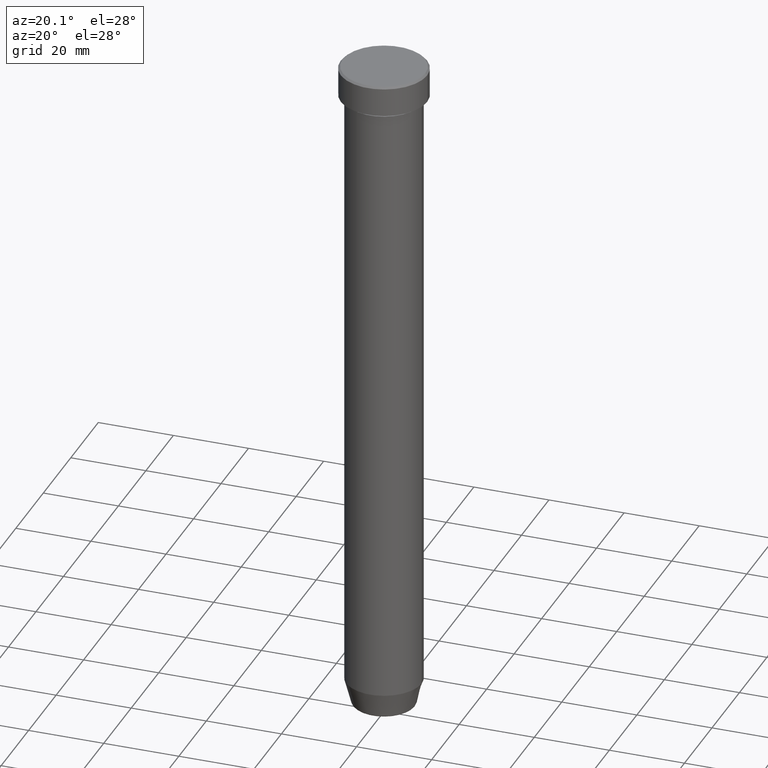
[diagram: clean part render]
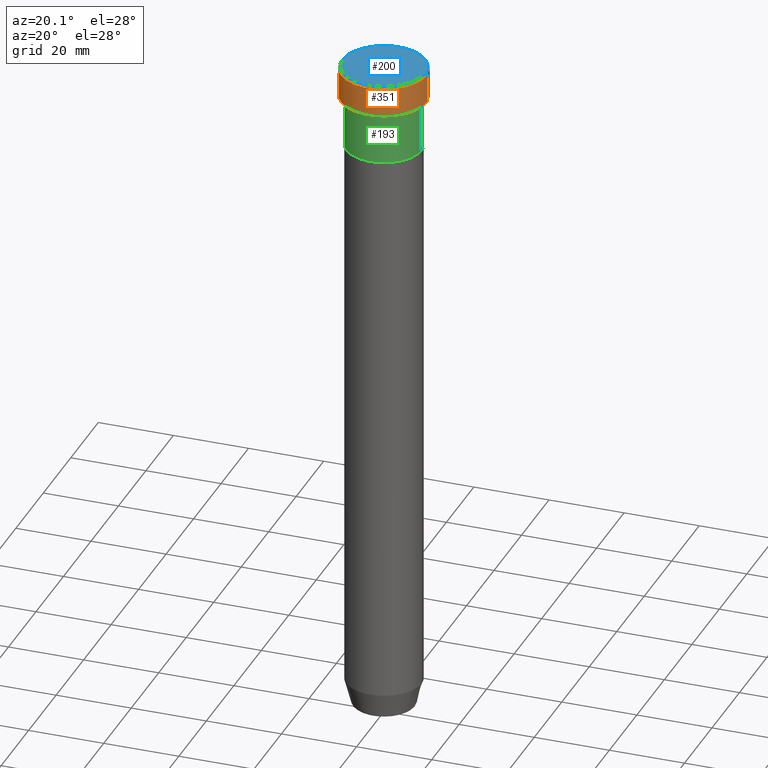
[diagram: same view with three faces highlighted in distinct colors, each labeled with its STEP entity id]
A machine part, auxiliary view with three faces highlighted in distinct colors.
Their STEP definitions:

[orange] entity #351 — the highlighted cylindrical surface (partial cylindrical patch) has radius 11.5 mm, axis along (-0, -0, 1).
#16 = LINE ( 'NONE', #58, #519 ) ;
#22 = EDGE_CURVE ( 'NONE', #314, #525, #61, .T. ) ;
#51 = EDGE_CURVE ( 'NONE', #314, #371, #535, .T. ) ;
#58 = CARTESIAN_POINT ( 'NONE',  ( 11.50000000000000000, 0.000000000000000000, 0.000000000000000000 ) ) ;
#60 = DIRECTION ( 'NONE',  ( -0.000000000000000000, -0.000000000000000000, 1.000000000000000000 ) ) ;
#61 = CIRCLE ( 'NONE', #296, 11.50000000000000000 ) ;
#65 = CYLINDRICAL_SURFACE ( 'NONE', #179, 11.50000000000000000 ) ;
#77 = ORIENTED_EDGE ( 'NONE', *, *, #22, .T. ) ;
#96 = CARTESIAN_POINT ( 'NONE',  ( -11.50000000000000000, 1.408343819019456176E-15, -0.5000000000000073275 ) ) ;
#138 = EDGE_CURVE ( 'NONE', #549, #371, #528, .T. ) ;
#158 = DIRECTION ( 'NONE',  ( -0.000000000000000000, -0.000000000000000000, 1.000000000000000000 ) ) ;
#161 = CARTESIAN_POINT ( 'NONE',  ( 11.50000000000000000, 0.000000000000000000, -0.5000000000000073275 ) ) ;
#179 = AXIS2_PLACEMENT_3D ( 'NONE', #570, #60, #289 ) ;
#183 = DIRECTION ( 'NONE',  ( 0.000000000000000000, 0.000000000000000000, -1.000000000000000000 ) ) ;
#189 = VECTOR ( 'NONE', #439, 1000.000000000000000 ) ;
#212 = CARTESIAN_POINT ( 'NONE',  ( -11.50000000000000000, 1.408343819019456176E-15, 0.000000000000000000 ) ) ;
#252 = CARTESIAN_POINT ( 'NONE',  ( 0.000000000000000000, 0.000000000000000000, -8.000000000000000000 ) ) ;
#265 = CARTESIAN_POINT ( 'NONE',  ( 11.50000000000000000, 0.000000000000000000, -8.000000000000000000 ) ) ;
#287 = ORIENTED_EDGE ( 'NONE', *, *, #138, .T. ) ;
#289 = DIRECTION ( 'NONE',  ( 1.000000000000000000, 0.000000000000000000, 0.000000000000000000 ) ) ;
#296 = AXIS2_PLACEMENT_3D ( 'NONE', #252, #479, #437 ) ;
#314 = VERTEX_POINT ( 'NONE', #510 ) ;
#318 = DIRECTION ( 'NONE',  ( 1.000000000000000000, 0.000000000000000000, 0.000000000000000000 ) ) ;
#326 = AXIS2_PLACEMENT_3D ( 'NONE', #362, #183, #318 ) ;
#331 = ORIENTED_EDGE ( 'NONE', *, *, #51, .F. ) ;
#333 = EDGE_LOOP ( 'NONE', ( #331, #77, #488, #287 ) ) ;
#351 = ADVANCED_FACE ( 'NONE', ( #432 ), #65, .T. ) ;
#358 = EDGE_CURVE ( 'NONE', #525, #549, #16, .T. ) ;
#362 = CARTESIAN_POINT ( 'NONE',  ( 0.000000000000000000, 0.000000000000000000, -0.5000000000000073275 ) ) ;
#371 = VERTEX_POINT ( 'NONE', #96 ) ;
#432 = FACE_OUTER_BOUND ( 'NONE', #333, .T. ) ;
#437 = DIRECTION ( 'NONE',  ( 1.000000000000000000, 0.000000000000000000, 0.000000000000000000 ) ) ;
#439 = DIRECTION ( 'NONE',  ( -0.000000000000000000, -0.000000000000000000, 1.000000000000000000 ) ) ;
#479 = DIRECTION ( 'NONE',  ( -0.000000000000000000, -0.000000000000000000, 1.000000000000000000 ) ) ;
#488 = ORIENTED_EDGE ( 'NONE', *, *, #358, .T. ) ;
#510 = CARTESIAN_POINT ( 'NONE',  ( -11.50000000000000000, 1.408343819019456176E-15, -8.000000000000000000 ) ) ;
#519 = VECTOR ( 'NONE', #158, 1000.000000000000000 ) ;
#525 = VERTEX_POINT ( 'NONE', #265 ) ;
#528 = CIRCLE ( 'NONE', #326, 11.50000000000000000 ) ;
#535 = LINE ( 'NONE', #212, #189 ) ;
#549 = VERTEX_POINT ( 'NONE', #161 ) ;
#570 = CARTESIAN_POINT ( 'NONE',  ( 0.000000000000000000, 0.000000000000000000, 0.000000000000000000 ) ) ;

[blue] entity #200 — the highlighted planar face has unit normal (0, -0, 1).
#7 = EDGE_CURVE ( 'NONE', #514, #27, #581, .T. ) ;
#27 = VERTEX_POINT ( 'NONE', #401 ) ;
#41 = DIRECTION ( 'NONE',  ( 0.000000000000000000, -0.000000000000000000, 1.000000000000000000 ) ) ;
#69 = CARTESIAN_POINT ( 'NONE',  ( 0.000000000000000000, 0.000000000000000000, 0.000000000000000000 ) ) ;
#90 = FACE_OUTER_BOUND ( 'NONE', #382, .T. ) ;
#95 = CIRCLE ( 'NONE', #150, 11.00000000000000000 ) ;
#116 = DIRECTION ( 'NONE',  ( -0.000000000000000000, -0.000000000000000000, 1.000000000000000000 ) ) ;
#150 = AXIS2_PLACEMENT_3D ( 'NONE', #558, #512, #550 ) ;
#185 = DIRECTION ( 'NONE',  ( 1.000000000000000000, 0.000000000000000000, 0.000000000000000000 ) ) ;
#200 = ADVANCED_FACE ( 'NONE', ( #90 ), #546, .T. ) ;
#255 = CARTESIAN_POINT ( 'NONE',  ( -11.00000000000000000, 0.000000000000000000, 0.000000000000000000 ) ) ;
#284 = AXIS2_PLACEMENT_3D ( 'NONE', #69, #116, #355 ) ;
#355 = DIRECTION ( 'NONE',  ( 1.000000000000000000, 0.000000000000000000, 0.000000000000000000 ) ) ;
#367 = AXIS2_PLACEMENT_3D ( 'NONE', #456, #41, #185 ) ;
#382 = EDGE_LOOP ( 'NONE', ( #430, #572 ) ) ;
#401 = CARTESIAN_POINT ( 'NONE',  ( 11.00000000000000000, 1.377727649040772389E-15, 0.000000000000000000 ) ) ;
#430 = ORIENTED_EDGE ( 'NONE', *, *, #7, .T. ) ;
#456 = CARTESIAN_POINT ( 'NONE',  ( 0.000000000000000000, 0.000000000000000000, 0.000000000000000000 ) ) ;
#512 = DIRECTION ( 'NONE',  ( -0.000000000000000000, -0.000000000000000000, 1.000000000000000000 ) ) ;
#514 = VERTEX_POINT ( 'NONE', #255 ) ;
#546 = PLANE ( 'NONE',  #367 ) ;
#550 = DIRECTION ( 'NONE',  ( 1.000000000000000000, 0.000000000000000000, 0.000000000000000000 ) ) ;
#558 = CARTESIAN_POINT ( 'NONE',  ( 0.000000000000000000, 0.000000000000000000, 0.000000000000000000 ) ) ;
#565 = EDGE_CURVE ( 'NONE', #27, #514, #95, .T. ) ;
#572 = ORIENTED_EDGE ( 'NONE', *, *, #565, .T. ) ;
#581 = CIRCLE ( 'NONE', #284, 11.00000000000000000 ) ;

[green] entity #193 — the highlighted cylindrical surface (partial cylindrical patch) has radius 10 mm, axis along (-0, -0, 1).
#8 = AXIS2_PLACEMENT_3D ( 'NONE', #171, #82, #543 ) ;
#15 = ORIENTED_EDGE ( 'NONE', *, *, #524, .T. ) ;
#63 = AXIS2_PLACEMENT_3D ( 'NONE', #101, #590, #414 ) ;
#80 = FACE_OUTER_BOUND ( 'NONE', #154, .T. ) ;
#82 = DIRECTION ( 'NONE',  ( -0.000000000000000000, -0.000000000000000000, 1.000000000000000000 ) ) ;
#101 = CARTESIAN_POINT ( 'NONE',  ( 0.000000000000000000, 0.000000000000000000, -9.000000000000001776 ) ) ;
#111 = CARTESIAN_POINT ( 'NONE',  ( -10.00000000000000000, 1.224646799147353256E-15, 0.000000000000000000 ) ) ;
#146 = ORIENTED_EDGE ( 'NONE', *, *, #576, .F. ) ;
#149 = AXIS2_PLACEMENT_3D ( 'NONE', #320, #591, #263 ) ;
#154 = EDGE_LOOP ( 'NONE', ( #239, #15, #567, #146 ) ) ;
#171 = CARTESIAN_POINT ( 'NONE',  ( 0.000000000000000000, 0.000000000000000000, -22.00000000000000000 ) ) ;
#193 = ADVANCED_FACE ( 'NONE', ( #80 ), #412, .T. ) ;
#202 = VERTEX_POINT ( 'NONE', #417 ) ;
#239 = ORIENTED_EDGE ( 'NONE', *, *, #322, .F. ) ;
#263 = DIRECTION ( 'NONE',  ( 1.000000000000000000, 0.000000000000000000, 0.000000000000000000 ) ) ;
#293 = CARTESIAN_POINT ( 'NONE',  ( -10.00000000000000000, 1.224646799147353256E-15, -22.00000000000000000 ) ) ;
#315 = LINE ( 'NONE', #462, #501 ) ;
#316 = VECTOR ( 'NONE', #530, 1000.000000000000000 ) ;
#320 = CARTESIAN_POINT ( 'NONE',  ( 0.000000000000000000, 0.000000000000000000, 0.000000000000000000 ) ) ;
#322 = EDGE_CURVE ( 'NONE', #339, #538, #556, .T. ) ;
#339 = VERTEX_POINT ( 'NONE', #293 ) ;
#376 = DIRECTION ( 'NONE',  ( -0.000000000000000000, -0.000000000000000000, 1.000000000000000000 ) ) ;
#412 = CYLINDRICAL_SURFACE ( 'NONE', #149, 10.00000000000000000 ) ;
#414 = DIRECTION ( 'NONE',  ( 1.000000000000000000, 0.000000000000000000, 0.000000000000000000 ) ) ;
#417 = CARTESIAN_POINT ( 'NONE',  ( 10.00000000000000000, 0.000000000000000000, -22.00000000000000000 ) ) ;
#441 = CIRCLE ( 'NONE', #8, 10.00000000000000000 ) ;
#449 = CARTESIAN_POINT ( 'NONE',  ( -10.00000000000000000, 1.224646799147353256E-15, -9.000000000000001776 ) ) ;
#462 = CARTESIAN_POINT ( 'NONE',  ( 10.00000000000000000, 0.000000000000000000, 0.000000000000000000 ) ) ;
#485 = VERTEX_POINT ( 'NONE', #500 ) ;
#500 = CARTESIAN_POINT ( 'NONE',  ( 10.00000000000000000, 0.000000000000000000, -9.000000000000001776 ) ) ;
#501 = VECTOR ( 'NONE', #376, 1000.000000000000000 ) ;
#524 = EDGE_CURVE ( 'NONE', #339, #202, #441, .T. ) ;
#529 = CIRCLE ( 'NONE', #63, 10.00000000000000000 ) ;
#530 = DIRECTION ( 'NONE',  ( -0.000000000000000000, -0.000000000000000000, 1.000000000000000000 ) ) ;
#538 = VERTEX_POINT ( 'NONE', #449 ) ;
#543 = DIRECTION ( 'NONE',  ( 1.000000000000000000, 0.000000000000000000, 0.000000000000000000 ) ) ;
#556 = LINE ( 'NONE', #111, #316 ) ;
#559 = EDGE_CURVE ( 'NONE', #202, #485, #315, .T. ) ;
#567 = ORIENTED_EDGE ( 'NONE', *, *, #559, .T. ) ;
#576 = EDGE_CURVE ( 'NONE', #538, #485, #529, .T. ) ;
#590 = DIRECTION ( 'NONE',  ( -0.000000000000000000, -0.000000000000000000, 1.000000000000000000 ) ) ;
#591 = DIRECTION ( 'NONE',  ( -0.000000000000000000, -0.000000000000000000, 1.000000000000000000 ) ) ;